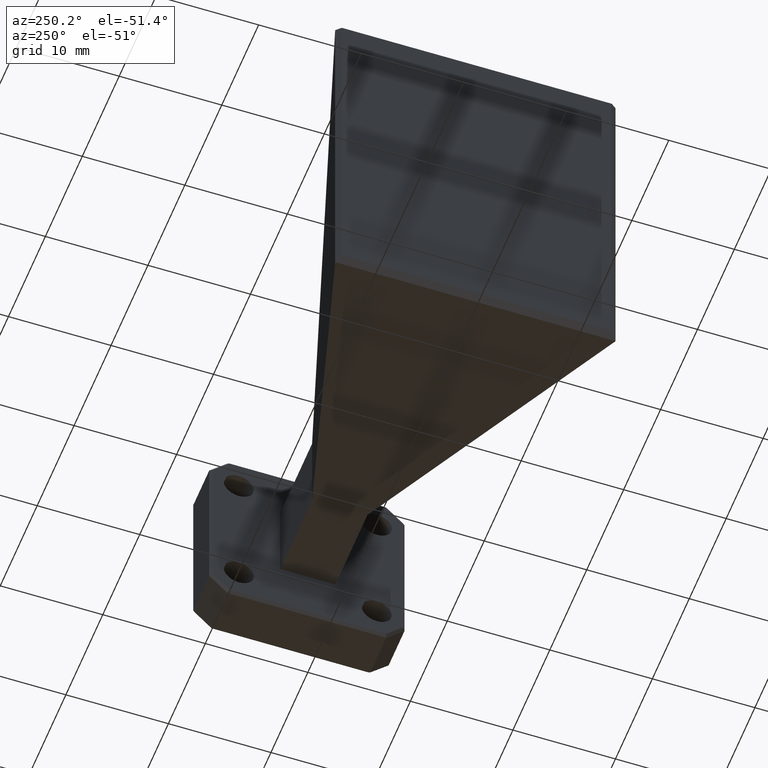
[diagram: clean part render]
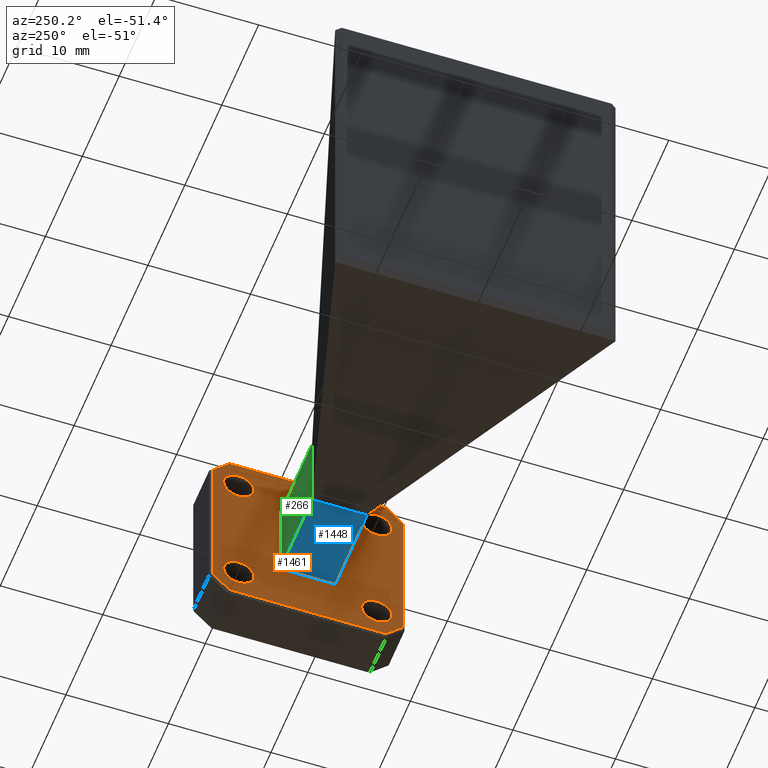
[diagram: same view with three faces highlighted in distinct colors, each labeled with its STEP entity id]
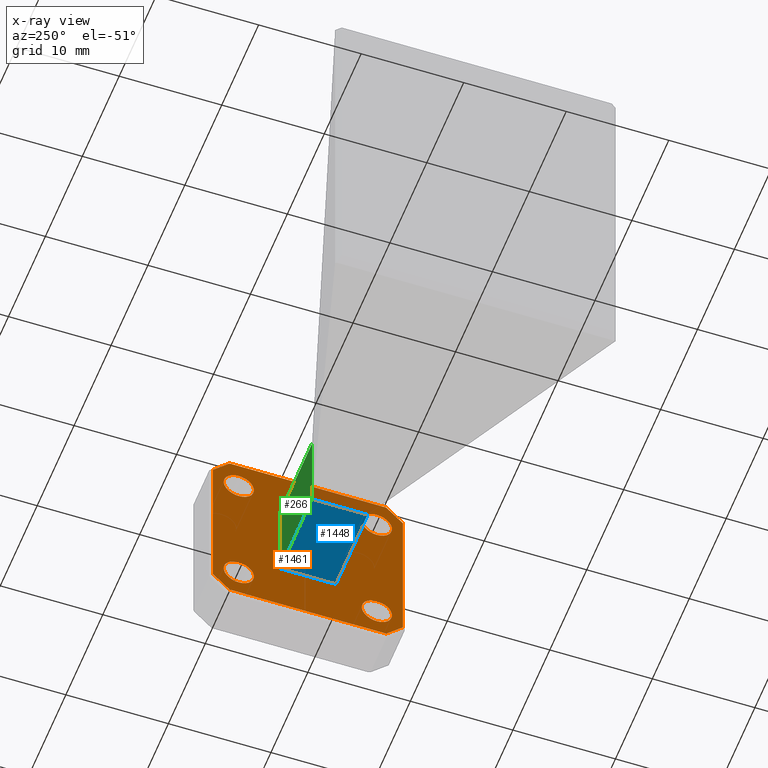
[diagram: x-ray of the same camera — body ghosted, the three highlighted faces saturated]
A machine part, auxiliary view with three faces highlighted in distinct colors.
The next image is the same camera in x-ray (body ghosted, the three faces saturated) — at least one of them is partly hidden behind the body in this view.
Their STEP definitions:

[orange] entity #1461 — the highlighted planar face has unit normal (1, 0, 0).
#11 = EDGE_CURVE ( 'NONE', #841, #1035, #1120, .T. ) ;
#12 = ORIENTED_EDGE ( 'NONE', *, *, #1042, .F. ) ;
#36 = ORIENTED_EDGE ( 'NONE', *, *, #1370, .F. ) ;
#50 = DIRECTION ( 'NONE',  ( 1.000000000000000000, 0.0000000000000000000, 0.0000000000000000000 ) ) ;
#60 = DIRECTION ( 'NONE',  ( 0.0000000000000000000, 1.000000000000000000, 1.821231995776175700E-016 ) ) ;
#61 = DIRECTION ( 'NONE',  ( 1.000000000000000000, 0.0000000000000000000, 0.0000000000000000000 ) ) ;
#66 = LINE ( 'NONE', #173, #1310 ) ;
#80 = DIRECTION ( 'NONE',  ( 0.0000000000000000000, 0.0000000000000000000, -1.000000000000000000 ) ) ;
#90 = CARTESIAN_POINT ( 'NONE',  ( -0.0000000000000000000, -0.1060000000000000200, -0.1620000000000000300 ) ) ;
#92 = EDGE_CURVE ( 'NONE', #617, #412, #387, .T. ) ;
#96 = EDGE_CURVE ( 'NONE', #1267, #694, #384, .T. ) ;
#123 = DIRECTION ( 'NONE',  ( 0.0000000000000000000, 0.0000000000000000000, -1.000000000000000000 ) ) ;
#125 = ORIENTED_EDGE ( 'NONE', *, *, #92, .T. ) ;
#127 = DIRECTION ( 'NONE',  ( 0.0000000000000000000, 0.7071067811865489100, 0.7071067811865461300 ) ) ;
#129 = EDGE_CURVE ( 'NONE', #237, #813, #66, .T. ) ;
#148 = EDGE_LOOP ( 'NONE', ( #388, #713 ) ) ;
#151 = EDGE_CURVE ( 'NONE', #1456, #1306, #611, .T. ) ;
#154 = CARTESIAN_POINT ( 'NONE',  ( 0.0000000000000000000, 0.1060000000000000100, -0.1620000000000000300 ) ) ;
#164 = VERTEX_POINT ( 'NONE', #1280 ) ;
#173 = CARTESIAN_POINT ( 'NONE',  ( 0.0000000000000000000, -6.647496784583035100E-017, 0.3649999999999996600 ) ) ;
#181 = FACE_BOUND ( 'NONE', #1203, .T. ) ;
#215 = DIRECTION ( 'NONE',  ( 0.0000000000000000000, 0.7071067811865461300, -0.7071067811865489100 ) ) ;
#233 = CIRCLE ( 'NONE', #320, 0.05799999999999973200 ) ;
#236 = AXIS2_PLACEMENT_3D ( 'NONE', #1273, #540, #1264 ) ;
#237 = VERTEX_POINT ( 'NONE', #1291 ) ;
#242 = VERTEX_POINT ( 'NONE', #1394 ) ;
#247 = DIRECTION ( 'NONE',  ( 0.0000000000000000000, 0.0000000000000000000, -1.000000000000000000 ) ) ;
#261 = LINE ( 'NONE', #1021, #278 ) ;
#271 = CARTESIAN_POINT ( 'NONE',  ( 0.0000000000000000000, 0.1060000000000000100, -0.1620000000000000300 ) ) ;
#278 = VECTOR ( 'NONE', #1403, 39.37007874015748100 ) ;
#279 = ORIENTED_EDGE ( 'NONE', *, *, #96, .T. ) ;
#305 = CARTESIAN_POINT ( 'NONE',  ( 0.0000000000000000000, 0.0000000000000000000, 0.0000000000000000000 ) ) ;
#320 = AXIS2_PLACEMENT_3D ( 'NONE', #1026, #1147, #1388 ) ;
#328 = CARTESIAN_POINT ( 'NONE',  ( 0.0000000000000000000, -0.2649999999999999000, 0.2499999999999999700 ) ) ;
#332 = CIRCLE ( 'NONE', #843, 0.05799999999999973200 ) ;
#346 = EDGE_CURVE ( 'NONE', #1545, #851, #1136, .T. ) ;
#357 = CARTESIAN_POINT ( 'NONE',  ( 0.0000000000000000000, 0.2650000000000001200, -0.3079999999999997200 ) ) ;
#384 = CIRCLE ( 'NONE', #739, 0.05799999999999973200 ) ;
#387 = LINE ( 'NONE', #1495, #1504 ) ;
#388 = ORIENTED_EDGE ( 'NONE', *, *, #151, .T. ) ;
#391 = ORIENTED_EDGE ( 'NONE', *, *, #487, .T. ) ;
#402 = DIRECTION ( 'NONE',  ( 0.0000000000000000000, 0.0000000000000000000, -1.000000000000000000 ) ) ;
#412 = VERTEX_POINT ( 'NONE', #448 ) ;
#415 = EDGE_CURVE ( 'NONE', #851, #444, #1176, .T. ) ;
#421 = DIRECTION ( 'NONE',  ( 0.0000000000000000000, 0.0000000000000000000, -1.000000000000000000 ) ) ;
#431 = DIRECTION ( 'NONE',  ( -0.0000000000000000000, -0.0000000000000000000, -1.000000000000000000 ) ) ;
#435 = ORIENTED_EDGE ( 'NONE', *, *, #415, .F. ) ;
#444 = VERTEX_POINT ( 'NONE', #839 ) ;
#448 = CARTESIAN_POINT ( 'NONE',  ( 0.0000000000000000000, -0.3649999999999997100, -0.3008578643762688800 ) ) ;
#481 = CARTESIAN_POINT ( 'NONE',  ( 0.0000000000000000000, -0.2979289321881338200, 0.3679289321881342700 ) ) ;
#487 = EDGE_CURVE ( 'NONE', #164, #242, #332, .T. ) ;
#489 = LINE ( 'NONE', #481, #862 ) ;
#495 = ORIENTED_EDGE ( 'NONE', *, *, #504, .T. ) ;
#504 = EDGE_CURVE ( 'NONE', #412, #1420, #607, .T. ) ;
#523 = EDGE_CURVE ( 'NONE', #1420, #237, #489, .T. ) ;
#530 = LINE ( 'NONE', #271, #1084 ) ;
#534 = LINE ( 'NONE', #1062, #930 ) ;
#537 = VERTEX_POINT ( 'NONE', #154 ) ;
#540 = DIRECTION ( 'NONE',  ( 1.000000000000000000, 0.0000000000000000000, 0.0000000000000000000 ) ) ;
#551 = CARTESIAN_POINT ( 'NONE',  ( 0.0000000000000000000, 0.3008578643762689400, -0.3649999999999997700 ) ) ;
#573 = FACE_BOUND ( 'NONE', #1167, .T. ) ;
#584 = EDGE_CURVE ( 'NONE', #821, #830, #1121, .T. ) ;
#607 = LINE ( 'NONE', #1220, #975 ) ;
#611 = CIRCLE ( 'NONE', #911, 0.05799999999999973200 ) ;
#617 = VERTEX_POINT ( 'NONE', #762 ) ;
#624 = CARTESIAN_POINT ( 'NONE',  ( 0.0000000000000000000, -0.2649999999999999000, 0.3079999999999997200 ) ) ;
#658 = DIRECTION ( 'NONE',  ( 0.0000000000000000000, 0.0000000000000000000, -1.000000000000000000 ) ) ;
#661 = CARTESIAN_POINT ( 'NONE',  ( 0.0000000000000000000, -0.2649999999999999000, 0.2499999999999999700 ) ) ;
#665 = DIRECTION ( 'NONE',  ( 1.000000000000000000, 0.0000000000000000000, 0.0000000000000000000 ) ) ;
#671 = CARTESIAN_POINT ( 'NONE',  ( 0.0000000000000000000, 0.3649999999999997100, -0.3008578643762693200 ) ) ;
#683 = EDGE_CURVE ( 'NONE', #242, #164, #233, .T. ) ;
#694 = VERTEX_POINT ( 'NONE', #1399 ) ;
#702 = DIRECTION ( 'NONE',  ( -0.0000000000000000000, -1.000000000000000000, -0.0000000000000000000 ) ) ;
#707 = CIRCLE ( 'NONE', #236, 0.05799999999999973200 ) ;
#708 = VERTEX_POINT ( 'NONE', #1266 ) ;
#713 = ORIENTED_EDGE ( 'NONE', *, *, #775, .T. ) ;
#719 = DIRECTION ( 'NONE',  ( 0.0000000000000000000, -0.0000000000000000000, 1.000000000000000000 ) ) ;
#739 = AXIS2_PLACEMENT_3D ( 'NONE', #1261, #50, #779 ) ;
#762 = CARTESIAN_POINT ( 'NONE',  ( 0.0000000000000000000, -0.3008578643762692700, -0.3649999999999998800 ) ) ;
#765 = CARTESIAN_POINT ( 'NONE',  ( 0.0000000000000000000, 0.2979289321881343200, -0.3679289321881344400 ) ) ;
#775 = EDGE_CURVE ( 'NONE', #1306, #1456, #840, .T. ) ;
#779 = DIRECTION ( 'NONE',  ( 0.0000000000000000000, 0.0000000000000000000, -1.000000000000000000 ) ) ;
#783 = ORIENTED_EDGE ( 'NONE', *, *, #1469, .T. ) ;
#786 = DIRECTION ( 'NONE',  ( 1.000000000000000000, 0.0000000000000000000, 0.0000000000000000000 ) ) ;
#788 = FACE_BOUND ( 'NONE', #998, .T. ) ;
#807 = VECTOR ( 'NONE', #80, 39.37007874015748100 ) ;
#812 = VECTOR ( 'NONE', #702, 39.37007874015748100 ) ;
#813 = VERTEX_POINT ( 'NONE', #1423 ) ;
#819 = CARTESIAN_POINT ( 'NONE',  ( 0.0000000000000000000, -0.1060000000000000200, 0.1620000000000000300 ) ) ;
#821 = VERTEX_POINT ( 'NONE', #671 ) ;
#830 = VERTEX_POINT ( 'NONE', #551 ) ;
#837 = DIRECTION ( 'NONE',  ( 0.0000000000000000000, 1.000000000000000000, 0.0000000000000000000 ) ) ;
#839 = CARTESIAN_POINT ( 'NONE',  ( 0.0000000000000000000, 0.1060000000000000100, 0.1620000000000000300 ) ) ;
#840 = CIRCLE ( 'NONE', #1512, 0.05799999999999973200 ) ;
#841 = VERTEX_POINT ( 'NONE', #1162 ) ;
#843 = AXIS2_PLACEMENT_3D ( 'NONE', #1327, #1447, #123 ) ;
#848 = CARTESIAN_POINT ( 'NONE',  ( 0.0000000000000000000, 0.2650000000000001200, -0.2499999999999999700 ) ) ;
#851 = VERTEX_POINT ( 'NONE', #819 ) ;
#852 = CARTESIAN_POINT ( 'NONE',  ( 0.0000000000000000000, -0.1060000000000000200, -0.1620000000000000300 ) ) ;
#862 = VECTOR ( 'NONE', #127, 39.37007874015748100 ) ;
#895 = ORIENTED_EDGE ( 'NONE', *, *, #1457, .T. ) ;
#911 = AXIS2_PLACEMENT_3D ( 'NONE', #328, #665, #1154 ) ;
#930 = VECTOR ( 'NONE', #215, 39.37007874015748100 ) ;
#947 = ORIENTED_EDGE ( 'NONE', *, *, #584, .T. ) ;
#952 = CARTESIAN_POINT ( 'NONE',  ( -0.0000000000000000000, -0.1060000000000000200, -0.1620000000000000300 ) ) ;
#975 = VECTOR ( 'NONE', #719, 39.37007874015748100 ) ;
#998 = EDGE_LOOP ( 'NONE', ( #435, #1300, #12, #36 ) ) ;
#1003 = DIRECTION ( 'NONE',  ( 0.0000000000000000000, -0.7071067811865446900, 0.7071067811865502400 ) ) ;
#1015 = ORIENTED_EDGE ( 'NONE', *, *, #1529, .T. ) ;
#1016 = PLANE ( 'NONE',  #1292 ) ;
#1021 = CARTESIAN_POINT ( 'NONE',  ( 0.0000000000000000000, 3.323748392291519400E-017, -0.3649999999999998800 ) ) ;
#1025 = DIRECTION ( 'NONE',  ( 1.000000000000000000, 0.0000000000000000000, 0.0000000000000000000 ) ) ;
#1026 = CARTESIAN_POINT ( 'NONE',  ( 0.0000000000000000000, -0.2649999999999999000, -0.2500000000000000600 ) ) ;
#1035 = VERTEX_POINT ( 'NONE', #357 ) ;
#1038 = CARTESIAN_POINT ( 'NONE',  ( 0.0000000000000000000, -0.3649999999999997100, 0.3008578643762686600 ) ) ;
#1042 = EDGE_CURVE ( 'NONE', #537, #1545, #1563, .T. ) ;
#1043 = EDGE_CURVE ( 'NONE', #813, #708, #534, .T. ) ;
#1060 = DIRECTION ( 'NONE',  ( 0.0000000000000000000, 0.0000000000000000000, 1.000000000000000000 ) ) ;
#1062 = CARTESIAN_POINT ( 'NONE',  ( 0.0000000000000000000, 0.3679289321881342700, 0.2979289321881347700 ) ) ;
#1068 = FACE_BOUND ( 'NONE', #1438, .T. ) ;
#1083 = VECTOR ( 'NONE', #837, 39.37007874015748100 ) ;
#1084 = VECTOR ( 'NONE', #431, 39.37007874015748100 ) ;
#1094 = AXIS2_PLACEMENT_3D ( 'NONE', #848, #1316, #247 ) ;
#1114 = CARTESIAN_POINT ( 'NONE',  ( 0.0000000000000000000, 0.2650000000000001200, 0.1920000000000003100 ) ) ;
#1120 = CIRCLE ( 'NONE', #1094, 0.05799999999999973200 ) ;
#1121 = LINE ( 'NONE', #765, #1428 ) ;
#1136 = LINE ( 'NONE', #90, #1501 ) ;
#1144 = EDGE_LOOP ( 'NONE', ( #947, #895, #125, #495, #1541, #1473, #1248, #1015 ) ) ;
#1147 = DIRECTION ( 'NONE',  ( 1.000000000000000000, 0.0000000000000000000, 0.0000000000000000000 ) ) ;
#1150 = ORIENTED_EDGE ( 'NONE', *, *, #11, .T. ) ;
#1154 = DIRECTION ( 'NONE',  ( 0.0000000000000000000, 0.0000000000000000000, -1.000000000000000000 ) ) ;
#1158 = ORIENTED_EDGE ( 'NONE', *, *, #1391, .T. ) ;
#1162 = CARTESIAN_POINT ( 'NONE',  ( 0.0000000000000000000, 0.2650000000000001200, -0.1920000000000002300 ) ) ;
#1167 = EDGE_LOOP ( 'NONE', ( #1158, #1150 ) ) ;
#1176 = LINE ( 'NONE', #1436, #1083 ) ;
#1178 = FACE_BOUND ( 'NONE', #148, .T. ) ;
#1197 = CIRCLE ( 'NONE', #1242, 0.05799999999999973200 ) ;
#1203 = EDGE_LOOP ( 'NONE', ( #1363, #391 ) ) ;
#1220 = CARTESIAN_POINT ( 'NONE',  ( 0.0000000000000000000, -0.3649999999999997100, 0.0000000000000000000 ) ) ;
#1234 = DIRECTION ( 'NONE',  ( 0.0000000000000000000, -0.7071067811865492400, -0.7071067811865458000 ) ) ;
#1242 = AXIS2_PLACEMENT_3D ( 'NONE', #1515, #61, #658 ) ;
#1248 = ORIENTED_EDGE ( 'NONE', *, *, #1043, .T. ) ;
#1261 = CARTESIAN_POINT ( 'NONE',  ( 0.0000000000000000000, 0.2650000000000001200, 0.2500000000000000600 ) ) ;
#1264 = DIRECTION ( 'NONE',  ( 0.0000000000000000000, 0.0000000000000000000, -1.000000000000000000 ) ) ;
#1266 = CARTESIAN_POINT ( 'NONE',  ( 0.0000000000000000000, 0.3649999999999997100, 0.3008578643762693200 ) ) ;
#1267 = VERTEX_POINT ( 'NONE', #1114 ) ;
#1273 = CARTESIAN_POINT ( 'NONE',  ( 0.0000000000000000000, 0.2650000000000001200, 0.2500000000000000600 ) ) ;
#1280 = CARTESIAN_POINT ( 'NONE',  ( 0.0000000000000000000, -0.2649999999999999000, -0.1920000000000003100 ) ) ;
#1291 = CARTESIAN_POINT ( 'NONE',  ( 0.0000000000000000000, -0.3008578643762684900, 0.3649999999999996000 ) ) ;
#1292 = AXIS2_PLACEMENT_3D ( 'NONE', #305, #1025, #421 ) ;
#1300 = ORIENTED_EDGE ( 'NONE', *, *, #346, .F. ) ;
#1306 = VERTEX_POINT ( 'NONE', #624 ) ;
#1310 = VECTOR ( 'NONE', #60, 39.37007874015748100 ) ;
#1316 = DIRECTION ( 'NONE',  ( 1.000000000000000000, 0.0000000000000000000, 0.0000000000000000000 ) ) ;
#1327 = CARTESIAN_POINT ( 'NONE',  ( 0.0000000000000000000, -0.2649999999999999000, -0.2500000000000000600 ) ) ;
#1363 = ORIENTED_EDGE ( 'NONE', *, *, #683, .T. ) ;
#1370 = EDGE_CURVE ( 'NONE', #444, #537, #530, .T. ) ;
#1388 = DIRECTION ( 'NONE',  ( 0.0000000000000000000, 0.0000000000000000000, -1.000000000000000000 ) ) ;
#1391 = EDGE_CURVE ( 'NONE', #1035, #841, #1197, .T. ) ;
#1394 = CARTESIAN_POINT ( 'NONE',  ( 0.0000000000000000000, -0.2649999999999999000, -0.3079999999999997700 ) ) ;
#1399 = CARTESIAN_POINT ( 'NONE',  ( 0.0000000000000000000, 0.2650000000000001200, 0.3079999999999997700 ) ) ;
#1403 = DIRECTION ( 'NONE',  ( 0.0000000000000000000, -1.000000000000000000, -9.106159978880878600E-017 ) ) ;
#1408 = CARTESIAN_POINT ( 'NONE',  ( 0.0000000000000000000, 0.3649999999999997100, 0.0000000000000000000 ) ) ;
#1420 = VERTEX_POINT ( 'NONE', #1038 ) ;
#1423 = CARTESIAN_POINT ( 'NONE',  ( 0.0000000000000000000, 0.3008578643762696000, 0.3649999999999997100 ) ) ;
#1428 = VECTOR ( 'NONE', #1234, 39.37007874015748100 ) ;
#1436 = CARTESIAN_POINT ( 'NONE',  ( 0.0000000000000000000, -0.1060000000000000200, 0.1620000000000000300 ) ) ;
#1438 = EDGE_LOOP ( 'NONE', ( #279, #783 ) ) ;
#1447 = DIRECTION ( 'NONE',  ( 1.000000000000000000, 0.0000000000000000000, 0.0000000000000000000 ) ) ;
#1456 = VERTEX_POINT ( 'NONE', #1513 ) ;
#1457 = EDGE_CURVE ( 'NONE', #830, #617, #261, .T. ) ;
#1461 = ADVANCED_FACE ( 'NONE', ( #1505, #1068, #573, #181, #1178, #788 ), #1016, .F. ) ;
#1469 = EDGE_CURVE ( 'NONE', #694, #1267, #707, .T. ) ;
#1473 = ORIENTED_EDGE ( 'NONE', *, *, #129, .T. ) ;
#1495 = CARTESIAN_POINT ( 'NONE',  ( 0.0000000000000000000, -0.3679289321881343300, -0.2979289321881342700 ) ) ;
#1501 = VECTOR ( 'NONE', #1060, 39.37007874015748100 ) ;
#1504 = VECTOR ( 'NONE', #1003, 39.37007874015748900 ) ;
#1505 = FACE_OUTER_BOUND ( 'NONE', #1144, .T. ) ;
#1512 = AXIS2_PLACEMENT_3D ( 'NONE', #661, #786, #402 ) ;
#1513 = CARTESIAN_POINT ( 'NONE',  ( 0.0000000000000000000, -0.2649999999999999000, 0.1920000000000002300 ) ) ;
#1515 = CARTESIAN_POINT ( 'NONE',  ( 0.0000000000000000000, 0.2650000000000001200, -0.2499999999999999700 ) ) ;
#1529 = EDGE_CURVE ( 'NONE', #708, #821, #1558, .T. ) ;
#1541 = ORIENTED_EDGE ( 'NONE', *, *, #523, .T. ) ;
#1545 = VERTEX_POINT ( 'NONE', #852 ) ;
#1558 = LINE ( 'NONE', #1408, #807 ) ;
#1563 = LINE ( 'NONE', #952, #812 ) ;

[blue] entity #1448 — the highlighted planar face has unit normal (0, -0, 1).
#14 = EDGE_LOOP ( 'NONE', ( #728, #48, #497, #126 ) ) ;
#25 = LINE ( 'NONE', #1268, #307 ) ;
#48 = ORIENTED_EDGE ( 'NONE', *, *, #119, .F. ) ;
#119 = EDGE_CURVE ( 'NONE', #147, #1545, #25, .T. ) ;
#126 = ORIENTED_EDGE ( 'NONE', *, *, #600, .T. ) ;
#147 = VERTEX_POINT ( 'NONE', #1037 ) ;
#153 = AXIS2_PLACEMENT_3D ( 'NONE', #1390, #675, #669 ) ;
#154 = CARTESIAN_POINT ( 'NONE',  ( 0.0000000000000000000, 0.1060000000000000100, -0.1620000000000000300 ) ) ;
#294 = VECTOR ( 'NONE', #988, 39.37007874015748100 ) ;
#307 = VECTOR ( 'NONE', #657, 39.37007874015748100 ) ;
#312 = VERTEX_POINT ( 'NONE', #587 ) ;
#399 = CARTESIAN_POINT ( 'NONE',  ( -0.3399999999999999700, 0.1060000000000000100, -0.1620000000000000300 ) ) ;
#497 = ORIENTED_EDGE ( 'NONE', *, *, #1034, .F. ) ;
#537 = VERTEX_POINT ( 'NONE', #154 ) ;
#587 = CARTESIAN_POINT ( 'NONE',  ( -0.3400000000000007500, 0.1060000000000001100, -0.1620000000000001400 ) ) ;
#600 = EDGE_CURVE ( 'NONE', #312, #537, #944, .T. ) ;
#635 = VECTOR ( 'NONE', #1546, 39.37007874015748100 ) ;
#657 = DIRECTION ( 'NONE',  ( 1.000000000000000000, -0.0000000000000000000, -0.0000000000000000000 ) ) ;
#669 = DIRECTION ( 'NONE',  ( 1.000000000000000000, 0.0000000000000000000, -0.0000000000000000000 ) ) ;
#675 = DIRECTION ( 'NONE',  ( 0.0000000000000000000, -0.0000000000000000000, 1.000000000000000000 ) ) ;
#699 = CARTESIAN_POINT ( 'NONE',  ( -0.3400000000000000800, -0.0000000000000000000, -0.1620000000000000900 ) ) ;
#702 = DIRECTION ( 'NONE',  ( -0.0000000000000000000, -1.000000000000000000, -0.0000000000000000000 ) ) ;
#728 = ORIENTED_EDGE ( 'NONE', *, *, #1042, .T. ) ;
#812 = VECTOR ( 'NONE', #702, 39.37007874015748100 ) ;
#852 = CARTESIAN_POINT ( 'NONE',  ( 0.0000000000000000000, -0.1060000000000000200, -0.1620000000000000300 ) ) ;
#944 = LINE ( 'NONE', #399, #294 ) ;
#952 = CARTESIAN_POINT ( 'NONE',  ( -0.0000000000000000000, -0.1060000000000000200, -0.1620000000000000300 ) ) ;
#988 = DIRECTION ( 'NONE',  ( 1.000000000000000000, -0.0000000000000000000, -0.0000000000000000000 ) ) ;
#1034 = EDGE_CURVE ( 'NONE', #312, #147, #1265, .T. ) ;
#1037 = CARTESIAN_POINT ( 'NONE',  ( -0.3400000000000000800, -0.1060000000000000700, -0.1620000000000000900 ) ) ;
#1042 = EDGE_CURVE ( 'NONE', #537, #1545, #1563, .T. ) ;
#1145 = PLANE ( 'NONE',  #153 ) ;
#1265 = LINE ( 'NONE', #699, #635 ) ;
#1268 = CARTESIAN_POINT ( 'NONE',  ( -0.3399999999999999700, -0.1060000000000000200, -0.1620000000000000300 ) ) ;
#1314 = FACE_OUTER_BOUND ( 'NONE', #14, .T. ) ;
#1390 = CARTESIAN_POINT ( 'NONE',  ( -0.3399999999999999700, -0.1060000000000000200, -0.1620000000000000300 ) ) ;
#1448 = ADVANCED_FACE ( 'NONE', ( #1314 ), #1145, .F. ) ;
#1545 = VERTEX_POINT ( 'NONE', #852 ) ;
#1546 = DIRECTION ( 'NONE',  ( -0.0000000000000000000, -1.000000000000000000, 0.0000000000000000000 ) ) ;
#1563 = LINE ( 'NONE', #952, #812 ) ;

[green] entity #266 — the highlighted planar face has unit normal (0, -1, 0).
#79 = DIRECTION ( 'NONE',  ( 0.0000000000000000000, -1.000000000000000000, 0.0000000000000000000 ) ) ;
#83 = DIRECTION ( 'NONE',  ( 0.0000000000000000000, -0.0000000000000000000, -1.000000000000000000 ) ) ;
#154 = CARTESIAN_POINT ( 'NONE',  ( 0.0000000000000000000, 0.1060000000000000100, -0.1620000000000000300 ) ) ;
#209 = EDGE_CURVE ( 'NONE', #248, #312, #457, .T. ) ;
#219 = VECTOR ( 'NONE', #1525, 39.37007874015748100 ) ;
#248 = VERTEX_POINT ( 'NONE', #1415 ) ;
#266 = ADVANCED_FACE ( 'NONE', ( #296 ), #928, .F. ) ;
#271 = CARTESIAN_POINT ( 'NONE',  ( 0.0000000000000000000, 0.1060000000000000100, -0.1620000000000000300 ) ) ;
#294 = VECTOR ( 'NONE', #988, 39.37007874015748100 ) ;
#296 = FACE_OUTER_BOUND ( 'NONE', #1206, .T. ) ;
#312 = VERTEX_POINT ( 'NONE', #587 ) ;
#322 = ORIENTED_EDGE ( 'NONE', *, *, #209, .F. ) ;
#399 = CARTESIAN_POINT ( 'NONE',  ( -0.3399999999999999700, 0.1060000000000000100, -0.1620000000000000300 ) ) ;
#428 = EDGE_CURVE ( 'NONE', #248, #444, #884, .T. ) ;
#431 = DIRECTION ( 'NONE',  ( -0.0000000000000000000, -0.0000000000000000000, -1.000000000000000000 ) ) ;
#432 = ORIENTED_EDGE ( 'NONE', *, *, #428, .T. ) ;
#444 = VERTEX_POINT ( 'NONE', #839 ) ;
#457 = LINE ( 'NONE', #680, #219 ) ;
#530 = LINE ( 'NONE', #271, #1084 ) ;
#537 = VERTEX_POINT ( 'NONE', #154 ) ;
#587 = CARTESIAN_POINT ( 'NONE',  ( -0.3400000000000007500, 0.1060000000000001100, -0.1620000000000001400 ) ) ;
#596 = CARTESIAN_POINT ( 'NONE',  ( -0.3399999999999999700, 0.1060000000000000100, 0.1620000000000000300 ) ) ;
#600 = EDGE_CURVE ( 'NONE', #312, #537, #944, .T. ) ;
#680 = CARTESIAN_POINT ( 'NONE',  ( -0.3399999999999999700, 0.1060000000000000000, 0.0000000000000000000 ) ) ;
#691 = ORIENTED_EDGE ( 'NONE', *, *, #1370, .T. ) ;
#839 = CARTESIAN_POINT ( 'NONE',  ( 0.0000000000000000000, 0.1060000000000000100, 0.1620000000000000300 ) ) ;
#879 = AXIS2_PLACEMENT_3D ( 'NONE', #1149, #79, #83 ) ;
#884 = LINE ( 'NONE', #596, #1008 ) ;
#928 = PLANE ( 'NONE',  #879 ) ;
#944 = LINE ( 'NONE', #399, #294 ) ;
#988 = DIRECTION ( 'NONE',  ( 1.000000000000000000, -0.0000000000000000000, -0.0000000000000000000 ) ) ;
#1008 = VECTOR ( 'NONE', #1460, 39.37007874015748100 ) ;
#1084 = VECTOR ( 'NONE', #431, 39.37007874015748100 ) ;
#1149 = CARTESIAN_POINT ( 'NONE',  ( -0.3399999999999999700, 0.1060000000000000100, -0.1620000000000000300 ) ) ;
#1206 = EDGE_LOOP ( 'NONE', ( #691, #1286, #322, #432 ) ) ;
#1286 = ORIENTED_EDGE ( 'NONE', *, *, #600, .F. ) ;
#1370 = EDGE_CURVE ( 'NONE', #444, #537, #530, .T. ) ;
#1415 = CARTESIAN_POINT ( 'NONE',  ( -0.3400000000000000800, 0.1060000000000001100, 0.1620000000000000900 ) ) ;
#1460 = DIRECTION ( 'NONE',  ( 1.000000000000000000, -0.0000000000000000000, -0.0000000000000000000 ) ) ;
#1525 = DIRECTION ( 'NONE',  ( -0.0000000000000000000, 0.0000000000000000000, -1.000000000000000000 ) ) ;